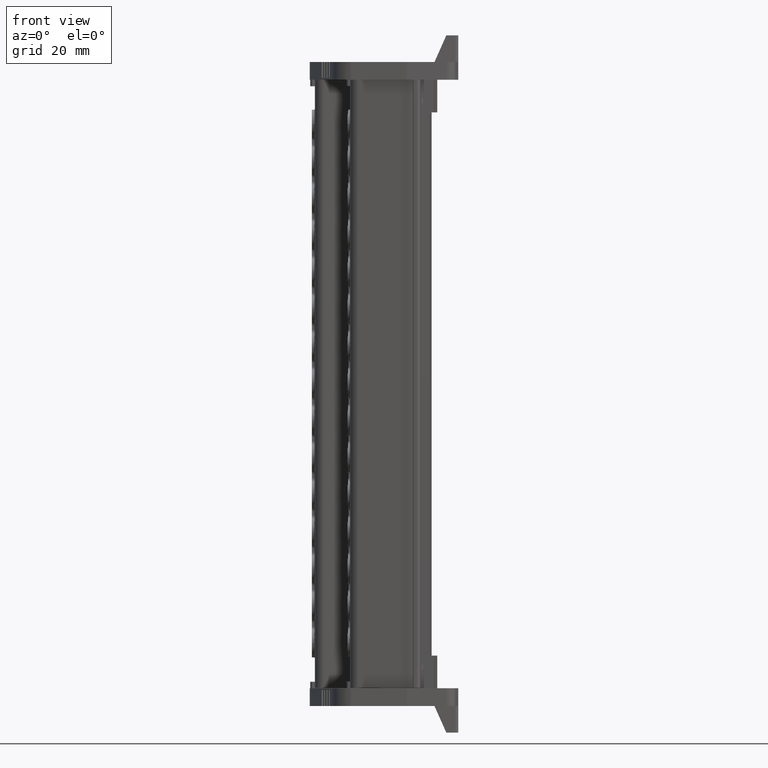
[diagram: clean part render]
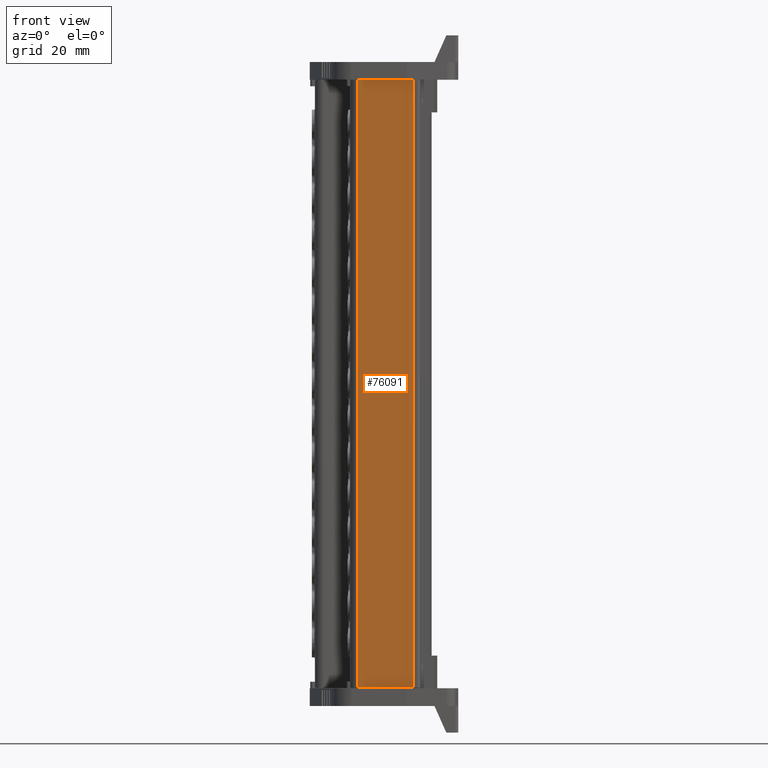
[diagram: same view with one face highlighted and labeled with its STEP entity id]
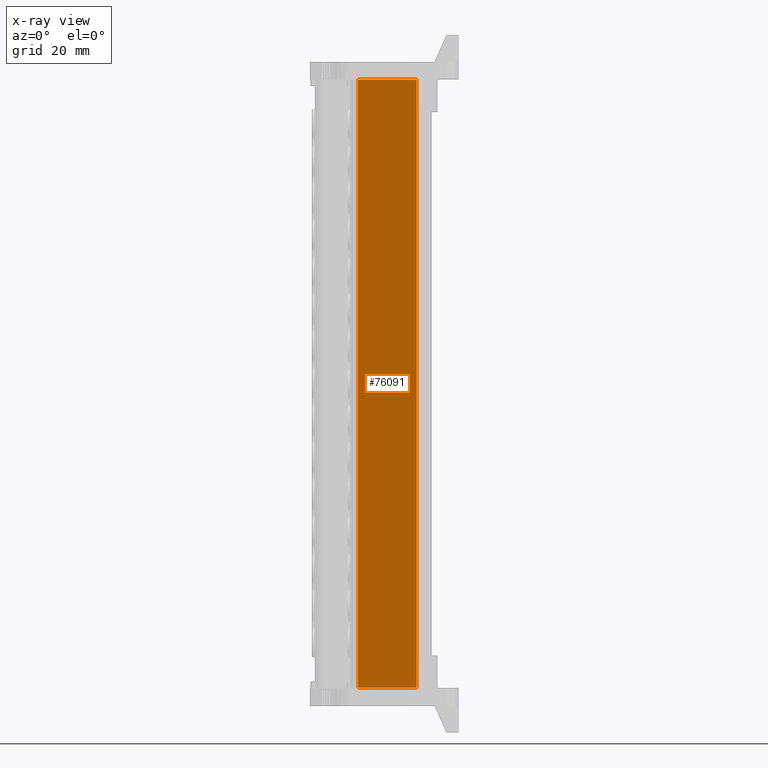
[diagram: x-ray of the same camera — body ghosted, the highlighted face saturated]
A machine part, front view. The second image highlights one B-rep face of the part: STEP entity #76091.
The next image is the same camera in x-ray: the body ghosted, the highlighted face saturated — about 0% of this face is hidden behind the body in this view.
In plain terms, the highlighted planar face has unit normal (-0.1045, -0.9945, -0).
Its self-contained STEP definition (entity closure, byte-faithful):
#1429 = LINE ( 'NONE', #1448, #83099 ) ;
#1435 = DIRECTION ( 'NONE',  ( 0.9945219592039804500, -0.1045278559096859800, 0.0000000000000000000 ) ) ;
#1448 = CARTESIAN_POINT ( 'NONE',  ( 1890.863144689283200, 760.8867058760378100, 6.170753982072612100 ) ) ;
#26548 = DIRECTION ( 'NONE',  ( -1.515544296466811700E-010, -1.441952549265793000E-009, 1.000000000000000000 ) ) ;
#26616 = LINE ( 'NONE', #26619, #83183 ) ;
#26619 = CARTESIAN_POINT ( 'NONE',  ( 1902.323597675242600, 759.6821707499174200, 44.23084934952618900 ) ) ;
#26991 = CARTESIAN_POINT ( 'NONE',  ( 1902.323597678520900, 759.6821707495728300, 44.23084934952618900 ) ) ;
#27030 = LINE ( 'NONE', #26991, #83381 ) ;
#27034 = DIRECTION ( 'NONE',  ( -1.515544296466811700E-010, -1.441952549265793000E-009, 1.000000000000000000 ) ) ;
#34429 = EDGE_CURVE ( 'NONE', #91798, #81584, #46497, .T. ) ;
#34541 = EDGE_CURVE ( 'NONE', #91798, #81567, #53026, .T. ) ;
#42659 = CARTESIAN_POINT ( 'NONE',  ( 1902.323597667117800, 759.6821706568480300, 108.6552333055837600 ) ) ;
#42692 = CARTESIAN_POINT ( 'NONE',  ( 1882.548021735708300, 761.7606553810425100, 6.170753978787178800 ) ) ;
#42723 = CARTESIAN_POINT ( 'NONE',  ( 1902.323597683175200, 759.6821708045707700, 6.170753984638918300 ) ) ;
#42727 = CARTESIAN_POINT ( 'NONE',  ( 1902.323597651255600, 759.6821705092791000, 211.0203038005997800 ) ) ;
#44510 = CARTESIAN_POINT ( 'NONE',  ( 1882.548021708536700, 761.7606550852518700, 211.0203038005998100 ) ) ;
#46497 = LINE ( 'NONE', #46514, #89650 ) ;
#46500 = DIRECTION ( 'NONE',  ( 1.515544296466811700E-010, 1.441952549265793000E-009, -1.000000000000000000 ) ) ;
#46514 = CARTESIAN_POINT ( 'NONE',  ( 1882.548021732523000, 761.7606553258900700, 44.23084934952618900 ) ) ;
#47529 = EDGE_LOOP ( 'NONE', ( #56917, #56814, #56763, #56916, #56832 ) ) ;
#53015 = CARTESIAN_POINT ( 'NONE',  ( 1882.548021707245200, 761.7606550853876100, 211.0203038005998100 ) ) ;
#53023 = DIRECTION ( 'NONE',  ( 0.9945219592039796800, -0.1045278559096936300, 0.0000000000000000000 ) ) ;
#53026 = LINE ( 'NONE', #53015, #89699 ) ;
#56763 = ORIENTED_EDGE ( 'NONE', *, *, #78123, .T. ) ;
#56814 = ORIENTED_EDGE ( 'NONE', *, *, #77932, .T. ) ;
#56832 = ORIENTED_EDGE ( 'NONE', *, *, #34541, .F. ) ;
#56916 = ORIENTED_EDGE ( 'NONE', *, *, #78052, .T. ) ;
#56917 = ORIENTED_EDGE ( 'NONE', *, *, #34429, .T. ) ;
#62254 = CARTESIAN_POINT ( 'NONE',  ( 1890.863144683515000, 760.8867058211569700, 44.23084934952618900 ) ) ;
#62283 = PLANE ( 'NONE',  #65348 ) ;
#62284 = FACE_OUTER_BOUND ( 'NONE', #47529, .T. ) ;
#62285 = DIRECTION ( 'NONE',  ( 0.9945219592039804500, -0.1045278559096859800, 0.0000000000000000000 ) ) ;
#62297 = DIRECTION ( 'NONE',  ( -0.1045278559096860000, -0.9945219592039805700, -1.449895133959573500E-009 ) ) ;
#65348 = AXIS2_PLACEMENT_3D ( 'NONE', #62254, #62297, #62285 ) ;
#76091 = ADVANCED_FACE ( 'NONE', ( #62284 ), #62283, .T. ) ;
#77932 = EDGE_CURVE ( 'NONE', #81584, #81563, #1429, .T. ) ;
#78052 = EDGE_CURVE ( 'NONE', #81500, #81567, #26616, .T. ) ;
#78123 = EDGE_CURVE ( 'NONE', #81563, #81500, #27030, .T. ) ;
#81500 = VERTEX_POINT ( 'NONE', #42659 ) ;
#81563 = VERTEX_POINT ( 'NONE', #42723 ) ;
#81567 = VERTEX_POINT ( 'NONE', #42727 ) ;
#81584 = VERTEX_POINT ( 'NONE', #42692 ) ;
#83099 = VECTOR ( 'NONE', #1435, 1000.000000000000100 ) ;
#83183 = VECTOR ( 'NONE', #26548, 1000.000000000000000 ) ;
#83381 = VECTOR ( 'NONE', #27034, 1000.000000000000000 ) ;
#89650 = VECTOR ( 'NONE', #46500, 1000.000000000000000 ) ;
#89699 = VECTOR ( 'NONE', #53023, 1000.000000000000200 ) ;
#91798 = VERTEX_POINT ( 'NONE', #44510 ) ;